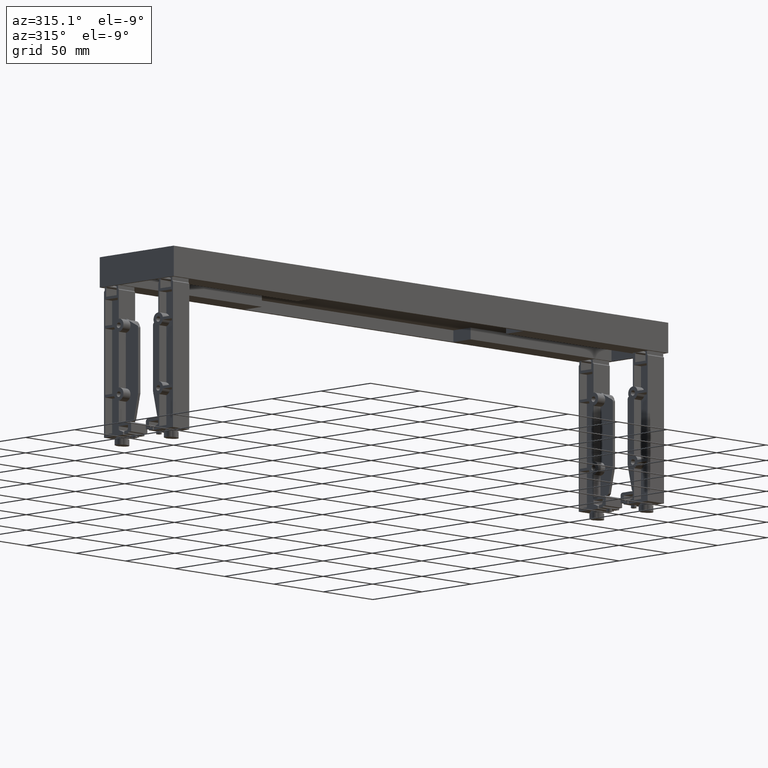
[diagram: clean part render]
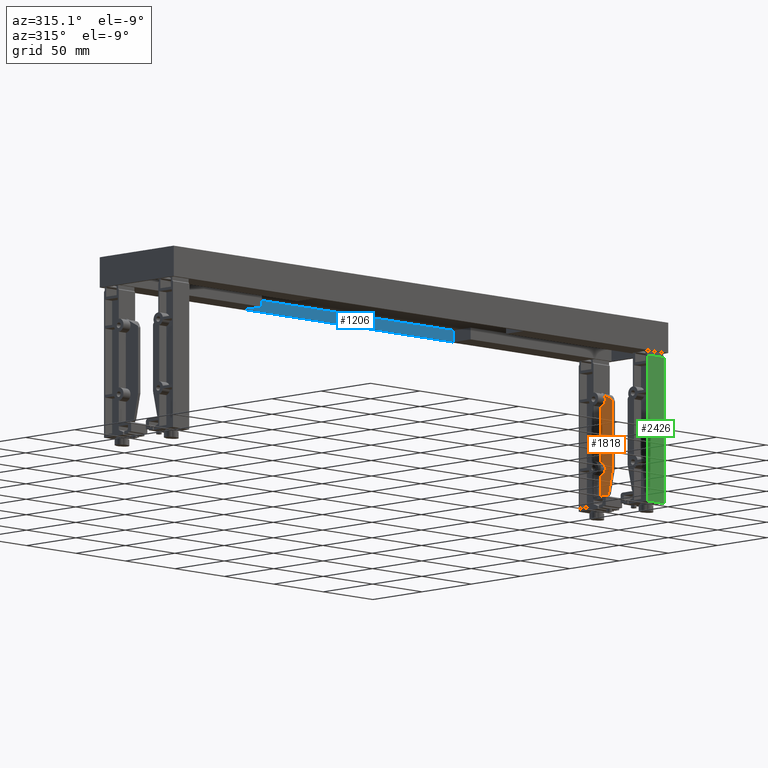
[diagram: same view with three faces highlighted in distinct colors, each labeled with its STEP entity id]
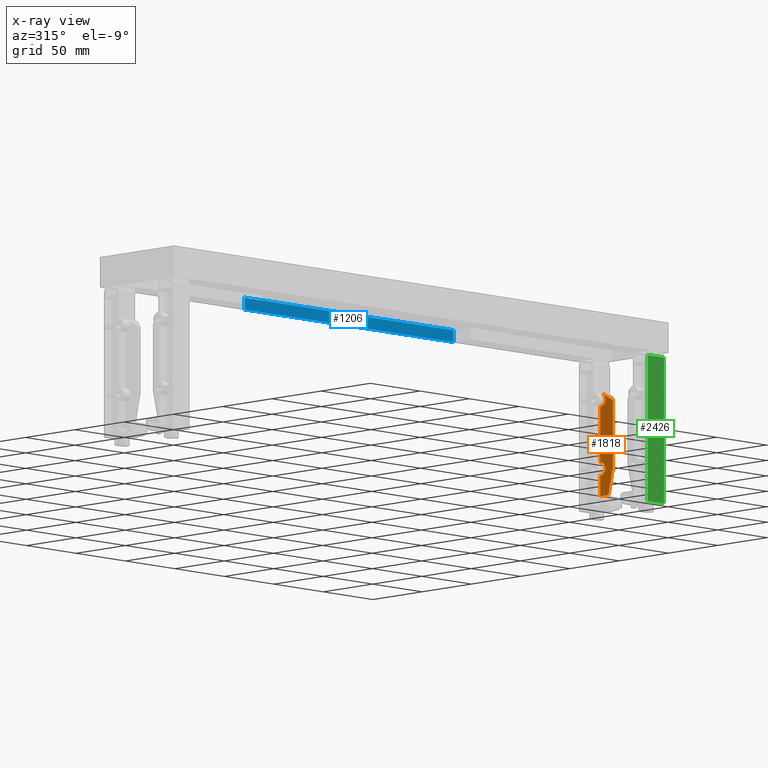
[diagram: x-ray of the same camera — body ghosted, the three highlighted faces saturated]
A machine part, auxiliary view with three faces highlighted in distinct colors.
The next image is the same camera in x-ray (body ghosted, the three faces saturated) — at least one of them is partly hidden behind the body in this view.
Their STEP definitions:

[orange] entity #1818 — the highlighted planar face has unit normal (1, 0, 0).
#1818=ADVANCED_FACE('',(#4052),#4053,.F.);
#4052=FACE_OUTER_BOUND('',#6797,.T.);
#4053=PLANE('',#6798);
#6797=EDGE_LOOP('',(#11742,#11743,#11744,#11745,#11746,#11747,#11748,#11749,#11750,#11751,#11752));
#6798=AXIS2_PLACEMENT_3D('',#11753,#11754,#11755);
#11742=ORIENTED_EDGE('',*,*,#17905,.T.);
#11743=ORIENTED_EDGE('',*,*,#17953,.F.);
#11744=ORIENTED_EDGE('',*,*,#18086,.F.);
#11745=ORIENTED_EDGE('',*,*,#18089,.F.);
#11746=ORIENTED_EDGE('',*,*,#18092,.F.);
#11747=ORIENTED_EDGE('',*,*,#18095,.F.);
#11748=ORIENTED_EDGE('',*,*,#18098,.F.);
#11749=ORIENTED_EDGE('',*,*,#18100,.F.);
#11750=ORIENTED_EDGE('',*,*,#18057,.F.);
#11751=ORIENTED_EDGE('',*,*,#17976,.T.);
#11752=ORIENTED_EDGE('',*,*,#17944,.F.);
#11753=CARTESIAN_POINT('',(488.9,51.8777590569862,53.3429849225928));
#11754=DIRECTION('',(1.0,0.0,0.0));
#11755=DIRECTION('',(0.0,0.0,-1.0));
#17905=EDGE_CURVE('',#21746,#21743,#21747,.T.);
#17944=EDGE_CURVE('',#21746,#21808,#21809,.T.);
#17953=EDGE_CURVE('',#21821,#21743,#21823,.T.);
#17976=EDGE_CURVE('',#21858,#21808,#21859,.T.);
#18057=EDGE_CURVE('',#21858,#22004,#22005,.T.);
#18086=EDGE_CURVE('',#22046,#21821,#22048,.T.);
#18089=EDGE_CURVE('',#22050,#22046,#22052,.T.);
#18092=EDGE_CURVE('',#22054,#22050,#22056,.T.);
#18095=EDGE_CURVE('',#22058,#22054,#22060,.T.);
#18098=EDGE_CURVE('',#22062,#22058,#22064,.T.);
#18100=EDGE_CURVE('',#22004,#22062,#22066,.T.);
#21743=VERTEX_POINT('',#27172);
#21746=VERTEX_POINT('',#27176);
#21747=CIRCLE('',#27177,4.75);
#21808=VERTEX_POINT('',#27261);
#21809=LINE('',#27262,#27263);
#21821=VERTEX_POINT('',#27281);
#21823=LINE('',#27284,#27285);
#21858=VERTEX_POINT('',#27330);
#21859=CIRCLE('',#27331,4.75);
#22004=VERTEX_POINT('',#27535);
#22005=LINE('',#27536,#27537);
#22046=VERTEX_POINT('',#27596);
#22048=LINE('',#27599,#27600);
#22050=VERTEX_POINT('',#27602);
#22052=CIRCLE('',#27605,1.9999999808);
#22054=VERTEX_POINT('',#27607);
#22056=LINE('',#27610,#27611);
#22058=VERTEX_POINT('',#27613);
#22060=CIRCLE('',#27616,2.00000109540072);
#22062=VERTEX_POINT('',#27618);
#22064=LINE('',#27621,#27622);
#22066=CIRCLE('',#27624,2.00000001949999);
#27172=CARTESIAN_POINT('',(488.9,57.5,31.05));
#27176=CARTESIAN_POINT('',(488.9,57.5,40.55));
#27177=AXIS2_PLACEMENT_3D('',#33194,#33195,#33196);
#27261=CARTESIAN_POINT('',(488.9,57.5,81.05));
#27262=CARTESIAN_POINT('',(488.9,57.5,58.2464924612964));
#27263=VECTOR('',#33238,1.0);
#27281=CARTESIAN_POINT('',(488.9,57.5,16.05));
#27284=CARTESIAN_POINT('',(488.9,57.5,58.2464924612964));
#27285=VECTOR('',#33246,1.0);
#27330=CARTESIAN_POINT('',(488.9,55.3073450966609,90.0136402844375));
#27331=AXIS2_PLACEMENT_3D('',#33275,#33276,#33277);
#27535=CARTESIAN_POINT('',(488.9,46.07677688,85.21032313));
#27536=CARTESIAN_POINT('',(488.9,57.5,91.15463363));
#27537=VECTOR('',#33379,1.0);
#27596=CARTESIAN_POINT('',(488.9,51.0955617099959,16.05));
#27599=CARTESIAN_POINT('',(488.9,51.09556171,16.05));
#27600=VECTOR('',#33408,1.0);
#27602=CARTESIAN_POINT('',(488.9,49.14553876,17.60569097));
#27605=AXIS2_PLACEMENT_3D('',#33410,#33411,#33412);
#27607=CARTESIAN_POINT('',(488.9,45.0499770499993,35.580656260021));
#27610=CARTESIAN_POINT('',(488.9,45.04997705,35.58065626));
#27611=VECTOR('',#33414,1.0);
#27613=CARTESIAN_POINT('',(488.9,45.0,36.02496529));
#27616=AXIS2_PLACEMENT_3D('',#33416,#33417,#33418);
#27618=CARTESIAN_POINT('',(488.9,45.0,83.4361587999847));
#27621=CARTESIAN_POINT('',(488.9,45.0,83.4361588));
#27622=VECTOR('',#33420,1.0);
#27624=AXIS2_PLACEMENT_3D('',#33421,#33422,#33423);
#33194=CARTESIAN_POINT('',(488.9,57.5,35.8));
#33195=DIRECTION('',(1.0,0.0,0.0));
#33196=DIRECTION('',(0.0,0.0,-1.0));
#33238=DIRECTION('',(0.0,0.0,1.0));
#33246=DIRECTION('',(0.0,0.0,1.0));
#33275=CARTESIAN_POINT('',(488.9,57.5,85.8));
#33276=DIRECTION('',(1.0,0.0,0.0));
#33277=DIRECTION('',(0.0,0.0,-1.0));
#33379=DIRECTION('',(0.0,-0.88708216569966,-0.461611558886475));
#33408=DIRECTION('',(0.0,1.0,0.0));
#33410=CARTESIAN_POINT('',(488.9,51.0955616896,18.0499999808));
#33411=DIRECTION('',(1.0,0.0,0.0));
#33412=DIRECTION('',(0.0,-0.975011474184188,-0.222154507514874));
#33414=DIRECTION('',(0.0,0.222154512744503,-0.975011472992627));
#33416=CARTESIAN_POINT('',(488.9,47.0000010954007,36.0249653911));
#33417=DIRECTION('',(1.0,0.0,0.0));
#33418=DIRECTION('',(0.0,-0.999999999999999,-5.05430353857372E-008));
#33420=DIRECTION('',(0.0,0.0,-1.0));
#33421=CARTESIAN_POINT('',(488.9,47.0000000195,83.4361587879));
#33422=DIRECTION('',(1.0,0.0,0.0));
#33423=DIRECTION('',(0.0,-0.461611565252718,0.887082162386854));

[blue] entity #1206 — the highlighted planar face has unit normal (0, 1, 0).
#1206=ADVANCED_FACE('',(#3100),#3101,.F.);
#3100=FACE_OUTER_BOUND('',#5845,.T.);
#3101=PLANE('',#5846);
#5845=EDGE_LOOP('',(#8783,#8784,#8785,#8786));
#5846=AXIS2_PLACEMENT_3D('',#8787,#8788,#8789);
#8783=ORIENTED_EDGE('',*,*,#16894,.F.);
#8784=ORIENTED_EDGE('',*,*,#16895,.F.);
#8785=ORIENTED_EDGE('',*,*,#16886,.F.);
#8786=ORIENTED_EDGE('',*,*,#16896,.F.);
#8787=CARTESIAN_POINT('',(250.0,73.0,119.05));
#8788=DIRECTION('',(-0.0,1.0,0.0));
#8789=DIRECTION('',(1.0,0.0,0.0));
#16886=EDGE_CURVE('',#20232,#20234,#20235,.T.);
#16894=EDGE_CURVE('',#20247,#20248,#20249,.T.);
#16895=EDGE_CURVE('',#20234,#20247,#20250,.T.);
#16896=EDGE_CURVE('',#20248,#20232,#20251,.T.);
#20232=VERTEX_POINT('',#25142);
#20234=VERTEX_POINT('',#25145);
#20235=LINE('',#25146,#25147);
#20247=VERTEX_POINT('',#25164);
#20248=VERTEX_POINT('',#25165);
#20249=LINE('',#25166,#25167);
#20250=LINE('',#25168,#25169);
#20251=LINE('',#25170,#25171);
#25142=CARTESIAN_POINT('',(144.5,73.0,114.8));
#25145=CARTESIAN_POINT('',(144.5,73.0,123.3));
#25146=CARTESIAN_POINT('',(144.5,73.0,119.05));
#25147=VECTOR('',#31997,1.0);
#25164=CARTESIAN_POINT('',(355.5,73.0,123.3));
#25165=CARTESIAN_POINT('',(355.5,73.0,114.8));
#25166=CARTESIAN_POINT('',(355.5,73.0,119.05));
#25167=VECTOR('',#32003,1.0);
#25168=CARTESIAN_POINT('',(250.0,73.0,123.3));
#25169=VECTOR('',#32004,1.0);
#25170=CARTESIAN_POINT('',(250.0,73.0,114.8));
#25171=VECTOR('',#32005,1.0);
#31997=DIRECTION('',(0.0,0.0,1.0));
#32003=DIRECTION('',(0.0,0.0,-1.0));
#32004=DIRECTION('',(1.0,0.0,0.0));
#32005=DIRECTION('',(-1.0,0.0,0.0));

[green] entity #2426 — the highlighted planar face has unit normal (0, -1, 0).
#2426=ADVANCED_FACE('',(#4988),#4989,.T.);
#4988=FACE_OUTER_BOUND('',#7733,.T.);
#4989=PLANE('',#7734);
#7733=EDGE_LOOP('',(#14531,#14532,#14533,#14534));
#7734=AXIS2_PLACEMENT_3D('',#14535,#14536,#14537);
#14531=ORIENTED_EDGE('',*,*,#19171,.T.);
#14532=ORIENTED_EDGE('',*,*,#19172,.F.);
#14533=ORIENTED_EDGE('',*,*,#18927,.F.);
#14534=ORIENTED_EDGE('',*,*,#19169,.T.);
#14535=CARTESIAN_POINT('',(498.25,2.50000002,58.7));
#14536=DIRECTION('',(0.0,-1.0,0.0));
#14537=DIRECTION('',(0.0,0.0,1.0));
#18927=EDGE_CURVE('',#23288,#23290,#23291,.T.);
#19169=EDGE_CURVE('',#23288,#23619,#23621,.T.);
#19171=EDGE_CURVE('',#23619,#23623,#23624,.T.);
#19172=EDGE_CURVE('',#23290,#23623,#23625,.T.);
#23288=VERTEX_POINT('',#29298);
#23290=VERTEX_POINT('',#29301);
#23291=LINE('',#29302,#29303);
#23619=VERTEX_POINT('',#29779);
#23621=LINE('',#29782,#29783);
#23623=VERTEX_POINT('',#29785);
#23624=LINE('',#29786,#29787);
#23625=LINE('',#29788,#29789);
#29298=CARTESIAN_POINT('',(498.25,2.50000002,111.6));
#29301=CARTESIAN_POINT('',(498.25,2.5,5.80000000000001));
#29302=CARTESIAN_POINT('',(498.25,2.50000002,111.6));
#29303=VECTOR('',#34309,1.0);
#29779=CARTESIAN_POINT('',(481.75,2.50000002,111.6));
#29782=CARTESIAN_POINT('',(498.25,2.50000002,111.6));
#29783=VECTOR('',#34507,1.0);
#29785=CARTESIAN_POINT('',(481.75,2.5,5.80000000000001));
#29786=CARTESIAN_POINT('',(481.75,2.50000002,111.6));
#29787=VECTOR('',#34508,1.0);
#29788=CARTESIAN_POINT('',(498.25,2.5,5.80000000000001));
#29789=VECTOR('',#34509,1.0);
#34309=DIRECTION('',(0.0,0.0,-1.0));
#34507=DIRECTION('',(-1.0,0.0,0.0));
#34508=DIRECTION('',(0.0,0.0,-1.0));
#34509=DIRECTION('',(-1.0,0.0,0.0));